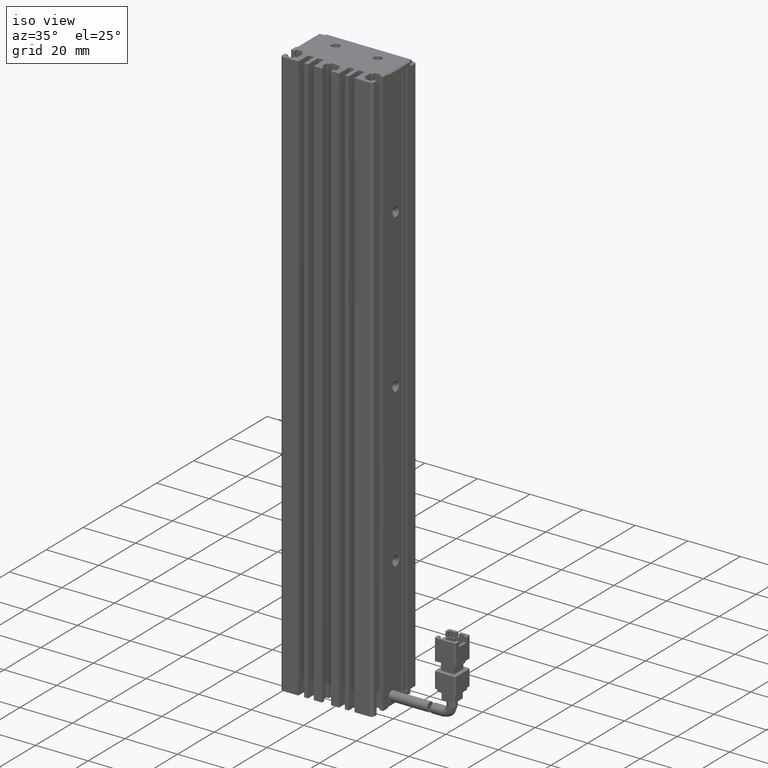
[diagram: clean part render]
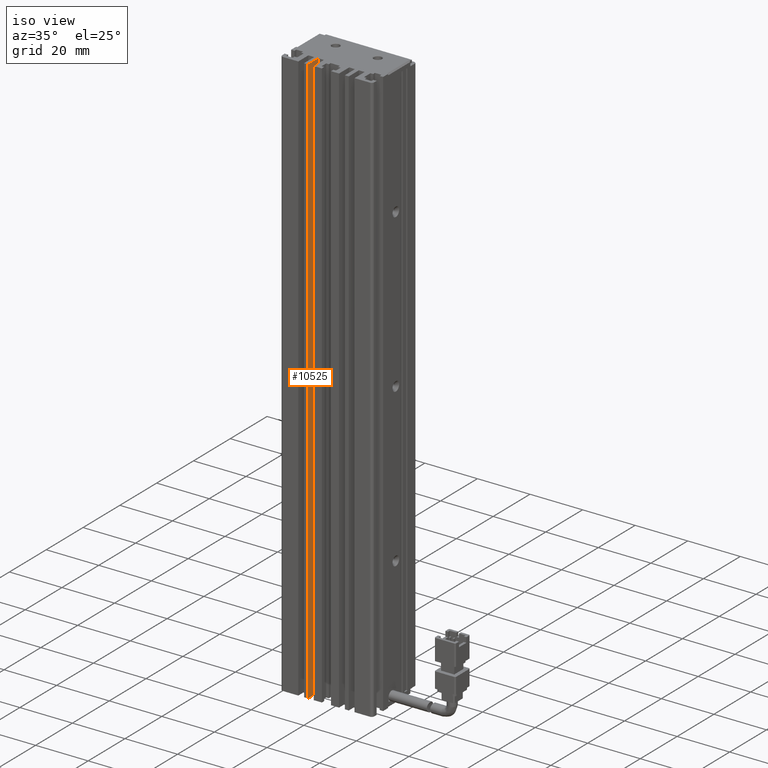
[diagram: same view with one face highlighted and labeled with its STEP entity id]
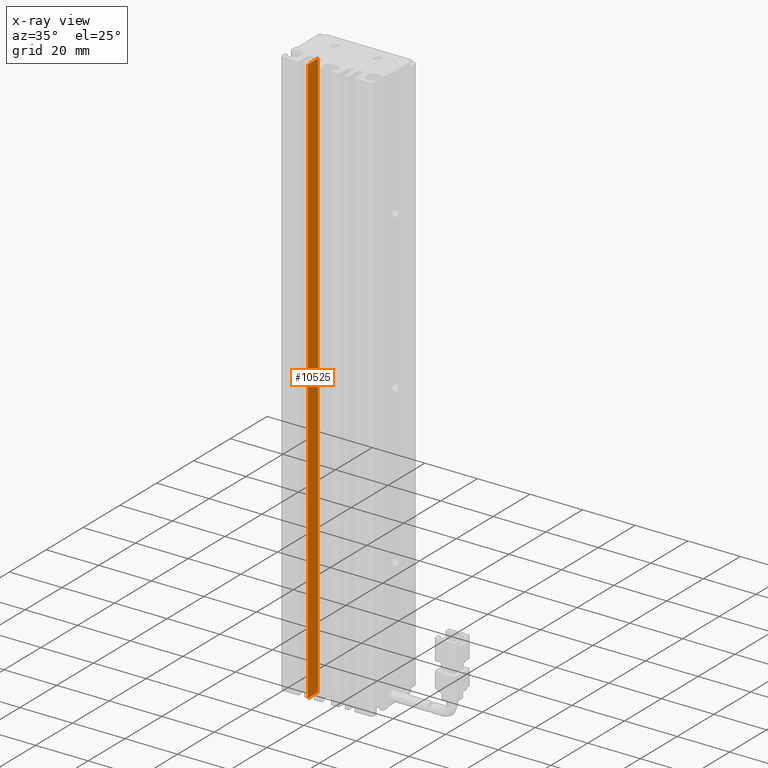
[diagram: x-ray of the same camera — body ghosted, the highlighted face saturated]
A machine part, iso view. The second image highlights one B-rep face of the part: STEP entity #10525.
The next image is the same camera in x-ray: the body ghosted, the highlighted face saturated — about 0% of this face is hidden behind the body in this view.
In plain terms, the highlighted planar face has unit normal (-1, 0, 0).
Its self-contained STEP definition (entity closure, byte-faithful):
#73 = LINE ( 'NONE', #53346, #3413 ) ;
#3413 = VECTOR ( 'NONE', #32465, 1000.000000000000000 ) ;
#3983 = VERTEX_POINT ( 'NONE', #24866 ) ;
#10525 = ADVANCED_FACE ( 'NONE', ( #40558 ), #88983, .F. ) ;
#14261 = ORIENTED_EDGE ( 'NONE', *, *, #72264, .F. ) ;
#14844 = DIRECTION ( 'NONE',  ( 0.0000000000000000000, 1.000000000000000000, -0.0000000000000000000 ) ) ;
#18057 = EDGE_CURVE ( 'NONE', #84884, #65027, #73, .T. ) ;
#20370 = AXIS2_PLACEMENT_3D ( 'NONE', #33630, #47136, #76092 ) ;
#22150 = VECTOR ( 'NONE', #14844, 1000.000000000000000 ) ;
#24866 = CARTESIAN_POINT ( 'NONE',  ( 33.92537974683543200, 16.49073232304837000, -6.000000000000005300 ) ) ;
#28753 = LINE ( 'NONE', #69920, #22150 ) ;
#30176 = EDGE_LOOP ( 'NONE', ( #59910, #14261, #80961, #48680 ) ) ;
#32465 = DIRECTION ( 'NONE',  ( 0.0000000000000000000, 0.0000000000000000000, 1.000000000000000000 ) ) ;
#33630 = CARTESIAN_POINT ( 'NONE',  ( 33.92537974683543200, 7.083797468354437600, -6.000000000000005300 ) ) ;
#34799 = CARTESIAN_POINT ( 'NONE',  ( 33.92537974683543200, 16.49073232304837000, -224.0000000000000000 ) ) ;
#38619 = CARTESIAN_POINT ( 'NONE',  ( 33.92537974683543200, 10.99073232304837000, -6.000000000000005300 ) ) ;
#40558 = FACE_OUTER_BOUND ( 'NONE', #30176, .T. ) ;
#44652 = EDGE_CURVE ( 'NONE', #87866, #3983, #63507, .T. ) ;
#47136 = DIRECTION ( 'NONE',  ( -1.000000000000000000, 0.0000000000000000000, 0.0000000000000000000 ) ) ;
#48680 = ORIENTED_EDGE ( 'NONE', *, *, #75747, .T. ) ;
#48915 = DIRECTION ( 'NONE',  ( 0.0000000000000000000, 1.000000000000000000, -0.0000000000000000000 ) ) ;
#52434 = CARTESIAN_POINT ( 'NONE',  ( 33.92537974683543200, 16.49073232304837000, -6.000000000000005300 ) ) ;
#53095 = CARTESIAN_POINT ( 'NONE',  ( 33.92537974683543200, 10.99073232304837000, -224.0000000000000000 ) ) ;
#53346 = CARTESIAN_POINT ( 'NONE',  ( 33.92537974683543200, 10.99073232304837000, -6.000000000000005300 ) ) ;
#54765 = VECTOR ( 'NONE', #59757, 1000.000000000000000 ) ;
#59757 = DIRECTION ( 'NONE',  ( 0.0000000000000000000, 0.0000000000000000000, 1.000000000000000000 ) ) ;
#59910 = ORIENTED_EDGE ( 'NONE', *, *, #44652, .T. ) ;
#63507 = LINE ( 'NONE', #52434, #54765 ) ;
#65027 = VERTEX_POINT ( 'NONE', #38619 ) ;
#68630 = VECTOR ( 'NONE', #48915, 1000.000000000000000 ) ;
#69920 = CARTESIAN_POINT ( 'NONE',  ( 33.92537974683543200, 7.083797468354437600, -224.0000000000000000 ) ) ;
#72264 = EDGE_CURVE ( 'NONE', #65027, #3983, #80600, .T. ) ;
#75747 = EDGE_CURVE ( 'NONE', #84884, #87866, #28753, .T. ) ;
#76092 = DIRECTION ( 'NONE',  ( 0.0000000000000000000, 0.0000000000000000000, 1.000000000000000000 ) ) ;
#77235 = CARTESIAN_POINT ( 'NONE',  ( 33.92537974683543200, 7.083797468354437600, -6.000000000000005300 ) ) ;
#80600 = LINE ( 'NONE', #77235, #68630 ) ;
#80961 = ORIENTED_EDGE ( 'NONE', *, *, #18057, .F. ) ;
#84884 = VERTEX_POINT ( 'NONE', #53095 ) ;
#87866 = VERTEX_POINT ( 'NONE', #34799 ) ;
#88983 = PLANE ( 'NONE',  #20370 ) ;